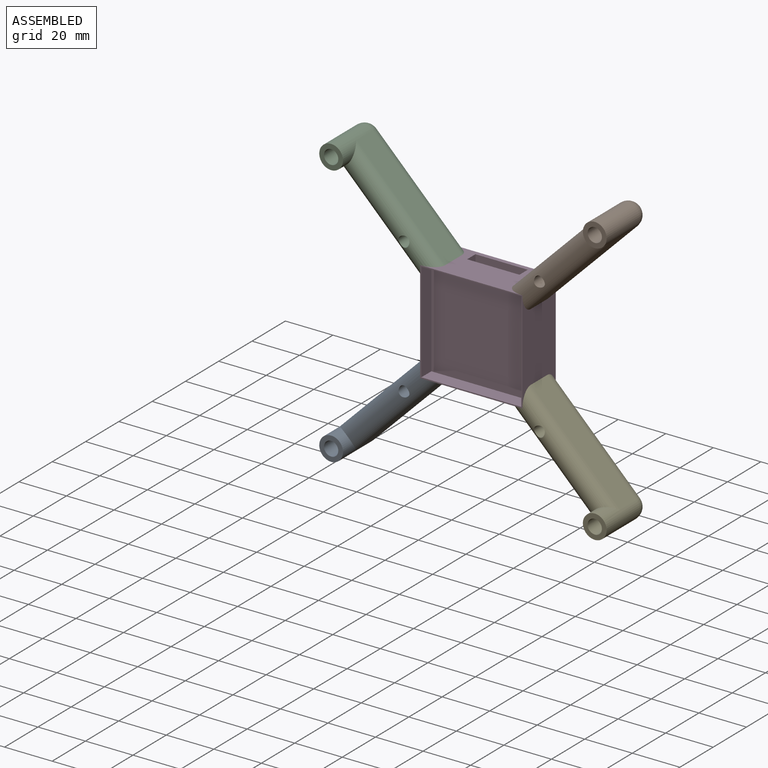
[diagram: assembled view]
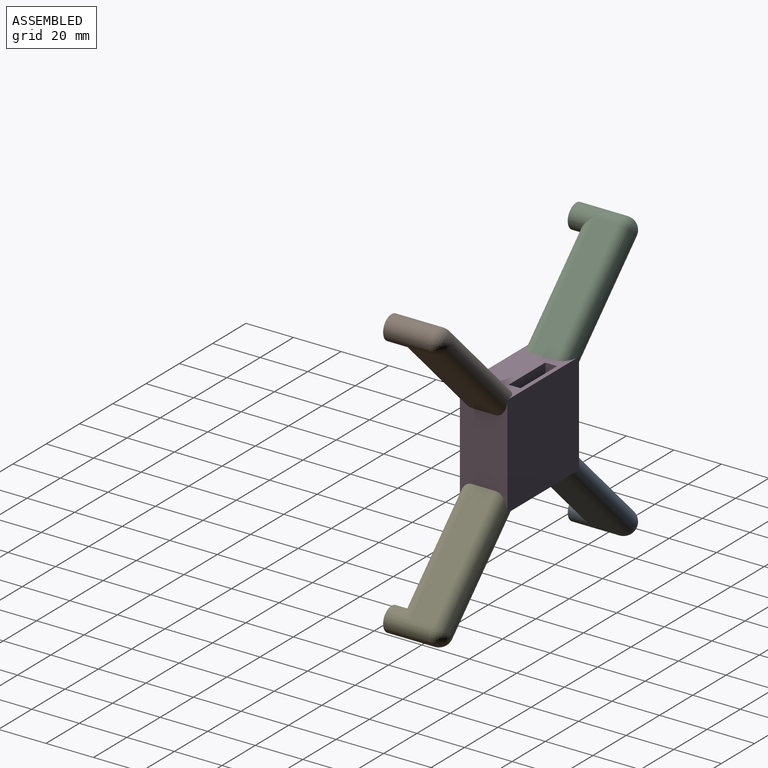
[diagram: assembled view, second angle]
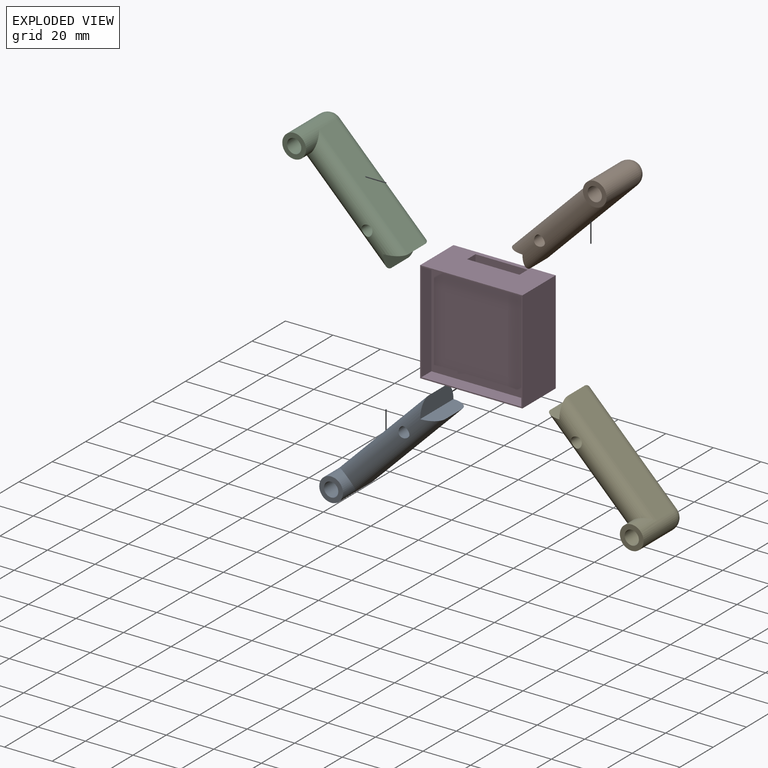
[diagram: exploded view]
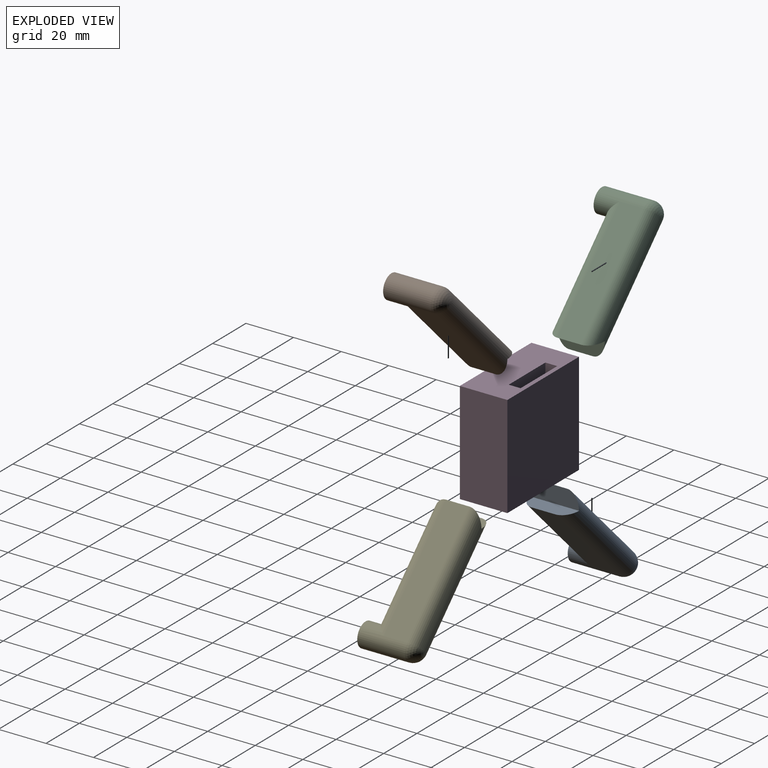
[diagram: exploded view, second angle]
ASSEMBLY  parts=5 mates=4
PART A: 23 faces, bbox 58x10x25 mm
  f0: plane 53x10mm, normal (0,-1,0), area 530mm2, adj f2,f3,f9,f21
  f1: plane 53x10mm, normal (0,1,0), area 530mm2, adj f2,f3,f9,f22
  f2: cylinder r=5mm len=53mm, axis (1,0,0), area 737.6mm2, adj f0,f1,f7,f9,f21,f22
  f3: cylinder r=5mm len=53mm, axis (-1,0,0), area 804mm2, adj f0,f1,f12,f21,f22
  f4: cylinder r=2.25mm len=4.5mm, axis (1,0,0), area 34.7mm2, adj f7,f16,f20
  f5: plane 2.2x0.26mm, normal (0,0,1), area 0.4mm2, adj f13,f18
  f6: plane 3.01x0.5mm, normal (0,0,1), area 1mm2, adj f13,f17
  f7: cylinder r=2.25mm len=14mm, axis (0,0,1), area 173.9mm2, adj f2,f4,f18
  f8: plane 10x10mm, normal (0,0,1), area 50.3mm2, adj f9,f10
  f9: cylinder r=5mm len=20mm, axis (0,0,1), area 421.2mm2, adj f0,f1,f2,f8,f12
  f10: cylinder r=3mm len=17mm, axis (0,0,1), area 320.1mm2, adj f8,f11,f18
  f11: plane 6x5.82mm, normal (0,0,1), area 7.6mm2, adj f10,f13,f18
  f12: sphere r=5mm, area 78.5mm2, adj f3,f9
  f13: cylinder r=2.5mm len=5mm, axis (0,0,1), area 20mm2, adj f5,f6,f11,f14,f17,f18,f19
  f14: plane 2.16x0.25mm, normal (0,0,1), area 0.4mm2, adj f13,f18
  f15: plane 4.5x4.5mm, normal (0,0,1), area 15.9mm2, adj f16
  f16: cylinder r=2.25mm len=4.5mm, axis (0,0,1), area 22.2mm2, adj f4,f15,f18
  f17: plane 4.5x3.93mm, normal (1,0,0), area 9.7mm2, adj f6,f13,f18,f19
  f18: cylinder r=2.25mm len=40.11mm, axis (1,0,0), area 519.4mm2, adj f5,f7,f10,f11,f13,f14,f16,f17
  f19: cylinder r=2.25mm len=1.68mm, axis (1,0,0), area 1mm2, adj f13,f17,f18
  f20: plane 4.5x4.5mm, normal (-1,0,0), area 15.9mm2, adj f4
  f21: plane 20x5mm, normal (0.71,0.71,0), area 126.2mm2, adj f0,f2,f3,f22
  f22: plane 20x5mm, normal (0.71,-0.71,0), area 126.2mm2, adj f1,f2,f3,f21
PART B: same geometry as A
PART C: same geometry as A
PART D: 15 faces, bbox 43x20x43 mm
  f0: plane 43x20mm, normal (0,0,-1), area 750mm2, adj f2,f3,f4,f5,f11,f12,f13,f14
  f1: plane 43x20mm, normal (0,0,1), area 750mm2, adj f2,f3,f4,f5,f11,f12,f13,f14
  f2: plane 43x43mm, normal (0,-1,0), area 85mm2, adj f0,f1,f3,f4,f6,f7,f8,f9
  f3: plane 43x20mm, normal (1,0,0), area 860mm2, adj f0,f1,f2,f5
  f4: plane 43x20mm, normal (-1,0,0), area 860mm2, adj f0,f1,f2,f5
  f5: plane 43x43mm, normal (0,1,0), area 1849mm2, adj f0,f1,f3,f4
  f6: plane 42x6mm, normal (0,0,1), area 252mm2, adj f2,f7,f9,f10
  f7: plane 42x6mm, normal (-1,0,0), area 252mm2, adj f2,f6,f8,f10
  f8: plane 42x6mm, normal (0,0,-1), area 252mm2, adj f2,f7,f9,f10
  f9: plane 42x6mm, normal (1,0,0), area 252mm2, adj f2,f6,f8,f10
  f10: plane 42x42mm, normal (0,-1,0), area 1764mm2, adj f6,f7,f8,f9
  f11: plane 43x5mm, normal (-1,0,0), area 215mm2, adj f0,f1,f12,f14
  f12: plane 43x22mm, normal (0,1,0), area 946mm2, adj f0,f1,f11,f13
  f13: plane 43x5mm, normal (1,0,0), area 215mm2, adj f0,f1,f12,f14
  f14: plane 43x22mm, normal (0,-1,0), area 946mm2, adj f0,f1,f11,f13
PART E: same geometry as A
PLACE A rot(axis=(0.86,-0.36,0.36),98.4deg) t=(2.8,19.1,-12.34)mm
PLACE B rot(axis=(0.28,0.68,-0.68),148.6deg) t=(42.97,19.1,13.69)mm
PLACE C rot(axis=(0.86,0.36,-0.36),98.4deg) t=(9.87,19.1,20.77)mm
PLACE D t=(22.88,19.1,0.68)mm
PLACE E rot(axis=(0.28,-0.68,0.68),148.6deg) t=(35.9,19.1,-19.41)mm
MATE fastened C.f21 <-> D.f4  axis (1,0,0) through (1.38,9.1,22.18)mm
MATE fastened B.f21 <-> D.f1  axis (0,0,-1) through (44.38,9.1,22.18)mm
MATE fastened A.f21 <-> D.f0  axis (0,0,1) through (1.38,9.1,-20.82)mm
MATE fastened E.f21 <-> D.f3  axis (-1,0,0) through (44.38,9.1,-20.82)mm
